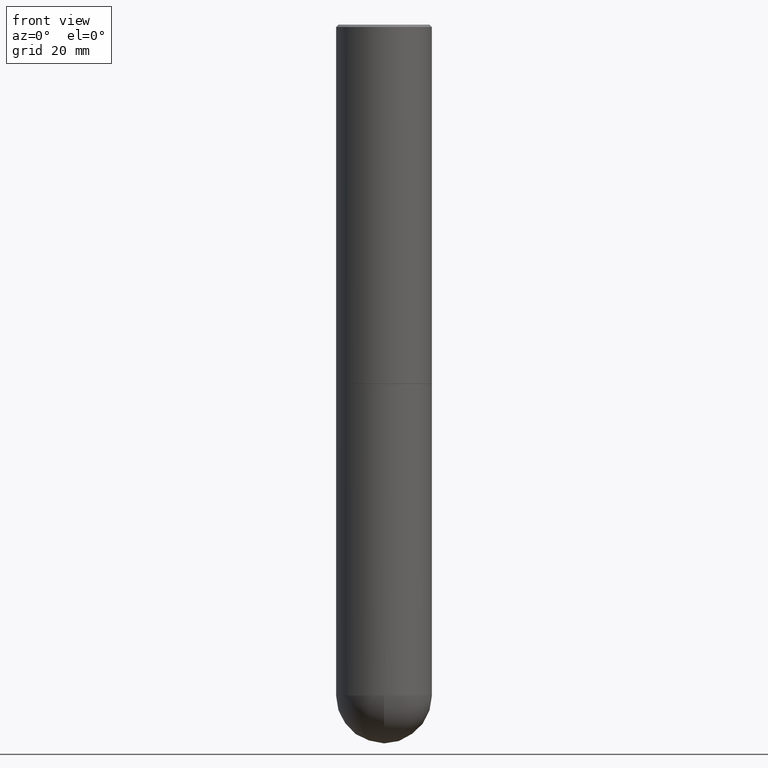
[diagram: clean part render]
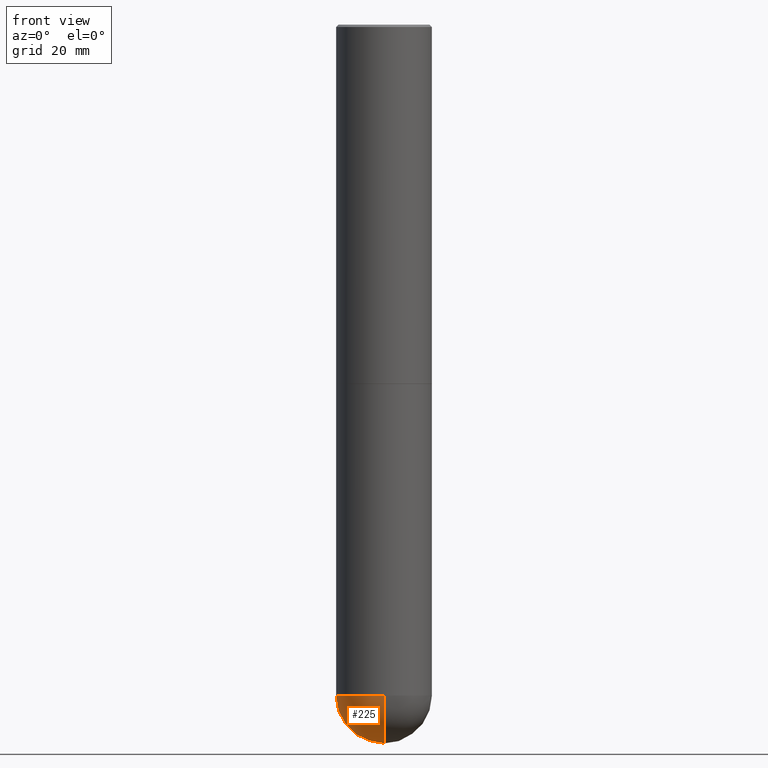
[diagram: same view with one face highlighted and labeled with its STEP entity id]
A machine part, front view. The second image highlights one B-rep face of the part: STEP entity #225.
In plain terms, the highlighted spherical surface has radius 10 mm.
Its self-contained STEP definition (entity closure, byte-faithful):
#5 = CARTESIAN_POINT ( 'NONE',  ( 1.314781518801735134E-28, -1.971852921157570065E-14, -5.511800000000000033 ) ) ;
#10 = CARTESIAN_POINT ( 'NONE',  ( 1.412743020541493694E-28, -2.106901824243703318E-14, -5.905499999999999972 ) ) ;
#13 = EDGE_CURVE ( 'NONE', #343, #245, #139, .T. ) ;
#32 = DIRECTION ( 'NONE',  ( -2.445468806185136597E-29, 3.491481338843145583E-15, 1.000000000000000000 ) ) ;
#34 = FACE_OUTER_BOUND ( 'NONE', #108, .T. ) ;
#49 = CIRCLE ( 'NONE', #96, 0.3937000000000001054 ) ;
#53 = DIRECTION ( 'NONE',  ( -1.000000000000000000, 7.105427357601001070E-15, -4.926315508542082329E-29 ) ) ;
#56 = VERTEX_POINT ( 'NONE', #319 ) ;
#83 = CIRCLE ( 'NONE', #107, 0.3937000000000001054 ) ;
#95 = AXIS2_PLACEMENT_3D ( 'NONE', #407, #53, #283 ) ;
#96 = AXIS2_PLACEMENT_3D ( 'NONE', #388, #196, #326 ) ;
#98 = CARTESIAN_POINT ( 'NONE',  ( 1.347893496593123646E-28, -1.924434684343564878E-14, -5.511800000000000033 ) ) ;
#99 = DIRECTION ( 'NONE',  ( 1.000000000000000000, -6.982962677686266711E-15, 0.000000000000000000 ) ) ;
#101 = CIRCLE ( 'NONE', #160, 0.3937000000000001054 ) ;
#107 = AXIS2_PLACEMENT_3D ( 'NONE', #328, #166, #162 ) ;
#108 = EDGE_LOOP ( 'NONE', ( #190, #116, #342, #183 ) ) ;
#116 = ORIENTED_EDGE ( 'NONE', *, *, #13, .T. ) ;
#139 = CIRCLE ( 'NONE', #95, 0.3937000000000001054 ) ;
#160 = AXIS2_PLACEMENT_3D ( 'NONE', #98, #32, #99 ) ;
#162 = DIRECTION ( 'NONE',  ( 6.982962677686265133E-15, 1.000000000000000000, 0.000000000000000000 ) ) ;
#166 = DIRECTION ( 'NONE',  ( 1.000000000000000000, -6.982962677686265922E-15, 4.883557194083112340E-29 ) ) ;
#183 = ORIENTED_EDGE ( 'NONE', *, *, #302, .F. ) ;
#190 = ORIENTED_EDGE ( 'NONE', *, *, #199, .F. ) ;
#196 = DIRECTION ( 'NONE',  ( -2.445468806185136597E-29, 3.491481338843145583E-15, 1.000000000000000000 ) ) ;
#199 = EDGE_CURVE ( 'NONE', #343, #56, #83, .T. ) ;
#225 = ADVANCED_FACE ( 'NONE', ( #34 ), #350, .T. ) ;
#245 = VERTEX_POINT ( 'NONE', #384 ) ;
#268 = DIRECTION ( 'NONE',  ( 6.982962677686265922E-15, 1.000000000000000000, -2.775563112689116301E-15 ) ) ;
#278 = CARTESIAN_POINT ( 'NONE',  ( -0.3937000000000001054, -1.197941514563138553E-14, -5.511800000000000033 ) ) ;
#283 = DIRECTION ( 'NONE',  ( -7.105427357601001070E-15, -1.000000000000000000, 0.000000000000000000 ) ) ;
#293 = EDGE_CURVE ( 'NONE', #362, #245, #49, .T. ) ;
#302 = EDGE_CURVE ( 'NONE', #56, #362, #101, .T. ) ;
#319 = CARTESIAN_POINT ( 'NONE',  ( 2.749192406205216928E-15, 0.3936999999999805655, -5.511800000000000921 ) ) ;
#324 = AXIS2_PLACEMENT_3D ( 'NONE', #5, #333, #268 ) ;
#326 = DIRECTION ( 'NONE',  ( 1.000000000000000000, -6.982962677686266711E-15, 0.000000000000000000 ) ) ;
#328 = CARTESIAN_POINT ( 'NONE',  ( 1.314781518801735134E-28, -1.971852921157570065E-14, -5.511800000000000033 ) ) ;
#333 = DIRECTION ( 'NONE',  ( -1.000000000000000000, 6.982962677686265922E-15, -4.883557194083112340E-29 ) ) ;
#342 = ORIENTED_EDGE ( 'NONE', *, *, #293, .F. ) ;
#343 = VERTEX_POINT ( 'NONE', #10 ) ;
#350 = SPHERICAL_SURFACE ( 'NONE', #324, 0.3937000000000001054 ) ;
#362 = VERTEX_POINT ( 'NONE', #278 ) ;
#384 = CARTESIAN_POINT ( 'NONE',  ( -2.797406750687381075E-15, -0.3937000000000196454, -5.511799999999999145 ) ) ;
#388 = CARTESIAN_POINT ( 'NONE',  ( 1.347893496593123646E-28, -1.924434684343564878E-14, -5.511800000000000033 ) ) ;
#407 = CARTESIAN_POINT ( 'NONE',  ( 1.314781518801735134E-28, -1.971852921157570065E-14, -5.511800000000000033 ) ) ;